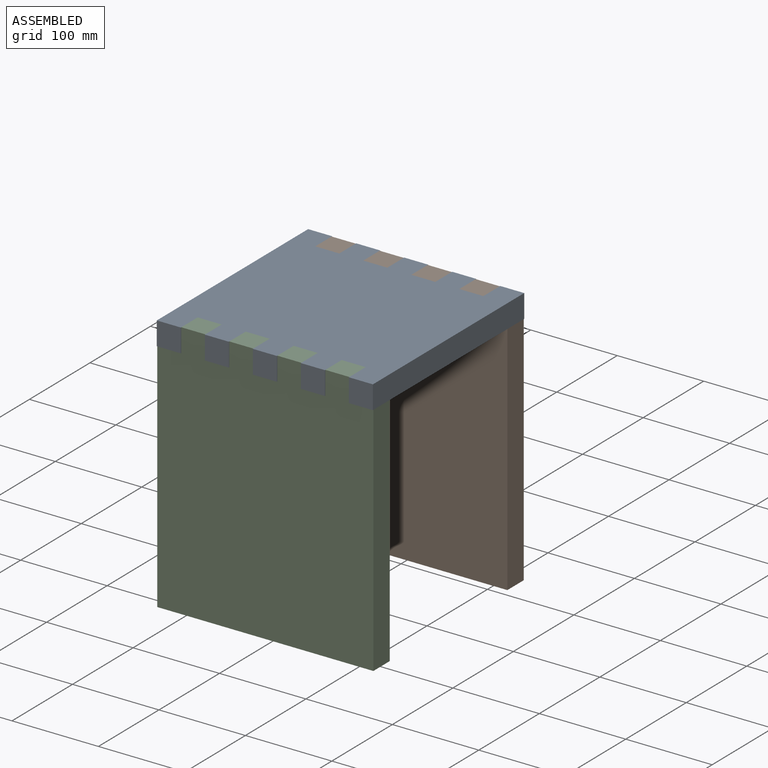
[diagram: assembled view]
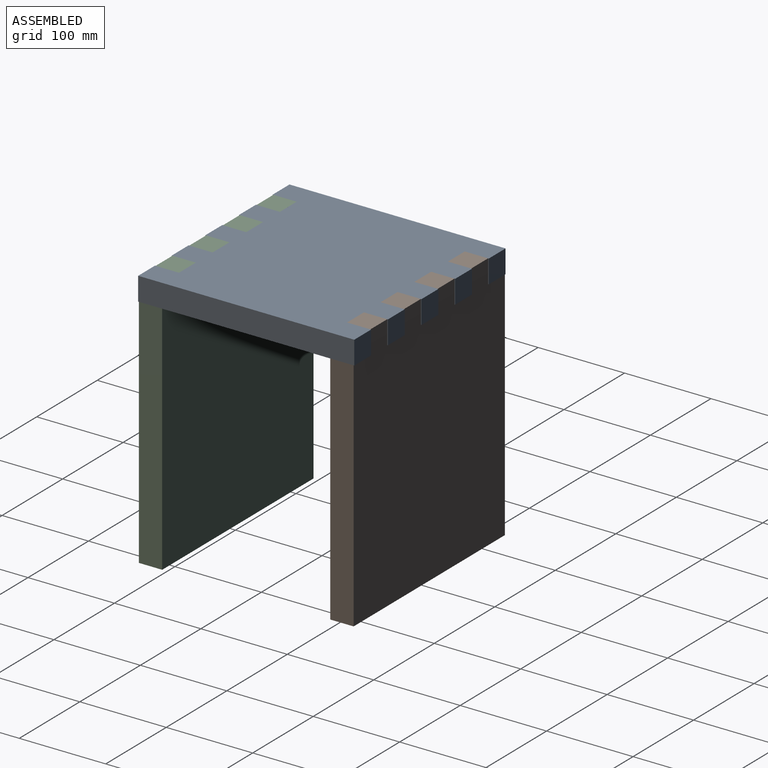
[diagram: assembled view, second angle]
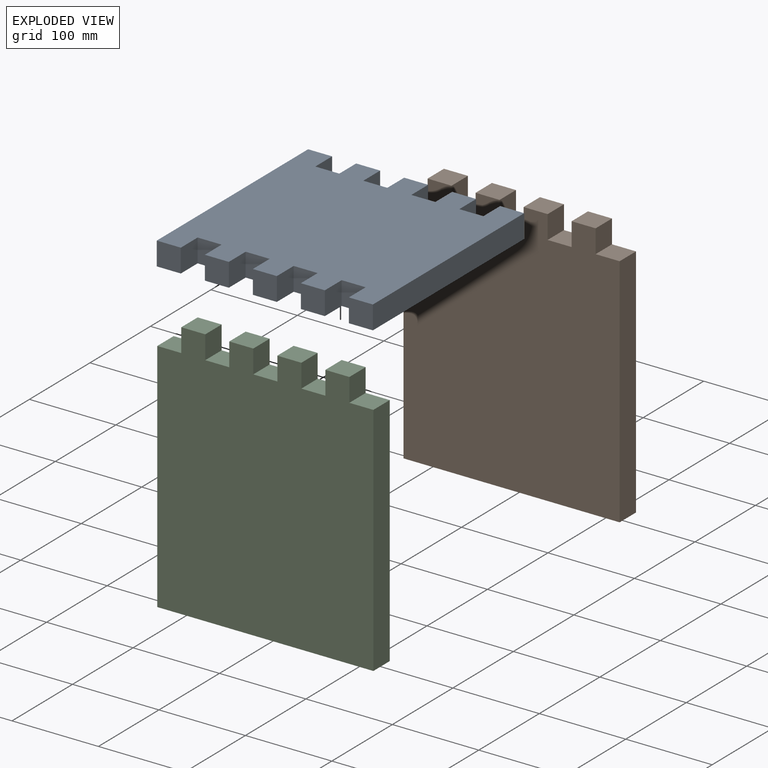
[diagram: exploded view]
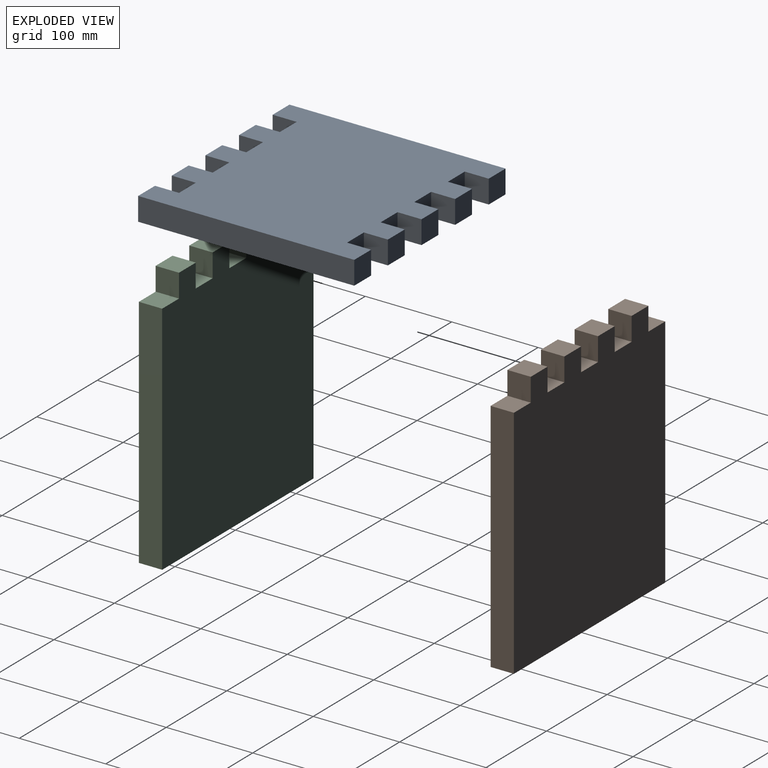
[diagram: exploded view, second angle]
ASSEMBLY  parts=3 mates=2
PART A: 38 faces, bbox 250x250x27 mm
  f0: plane 27.78x27mm, normal (-1,0,0), area 750mm2, adj f1,f35,f36,f37
  f1: plane 27.78x27mm, normal (0,-1,0), area 750mm2, adj f0,f2,f36,f37
  f2: plane 27.78x27mm, normal (1,0,0), area 750mm2, adj f1,f3,f36,f37
  f3: plane 27.78x27mm, normal (0,-1,0), area 750mm2, adj f2,f4,f36,f37
  f4: plane 27.78x27mm, normal (-1,0,0), area 750mm2, adj f3,f5,f36,f37
  f5: plane 27.78x27mm, normal (0,-1,0), area 750mm2, adj f4,f6,f36,f37
  f6: plane 27.78x27mm, normal (1,0,0), area 750mm2, adj f5,f7,f36,f37
  f7: plane 27.78x27mm, normal (0,-1,0), area 750mm2, adj f6,f8,f36,f37
  f8: plane 27.78x27mm, normal (-1,0,0), area 750mm2, adj f7,f9,f36,f37
  f9: plane 27.78x27mm, normal (0,-1,0), area 750mm2, adj f8,f10,f36,f37
  f10: plane 27.78x27mm, normal (1,0,0), area 750mm2, adj f9,f11,f36,f37
  f11: plane 27.78x27mm, normal (0,-1,0), area 750mm2, adj f10,f12,f36,f37
  f12: plane 27.78x27mm, normal (-1,0,0), area 750mm2, adj f11,f13,f36,f37
  f13: plane 27.78x27mm, normal (0,-1,0), area 750mm2, adj f12,f14,f36,f37
  f14: plane 250x27mm, normal (1,0,0), area 6750mm2, adj f13,f15,f36,f37
  f15: plane 27.78x27mm, normal (0,1,0), area 750mm2, adj f14,f16,f36,f37
  f16: plane 27.78x27mm, normal (-1,0,0), area 750mm2, adj f15,f17,f36,f37
  f17: plane 27.78x27mm, normal (0,1,0), area 750mm2, adj f16,f18,f36,f37
  f18: plane 27.78x27mm, normal (1,0,0), area 750mm2, adj f17,f19,f36,f37
  f19: plane 27.78x27mm, normal (0,1,0), area 750mm2, adj f18,f20,f36,f37
  f20: plane 27.78x27mm, normal (-1,0,0), area 750mm2, adj f19,f21,f36,f37
  f21: plane 27.78x27mm, normal (0,1,0), area 750mm2, adj f20,f22,f36,f37
  f22: plane 27.78x27mm, normal (1,0,0), area 750mm2, adj f21,f23,f36,f37
  f23: plane 27.78x27mm, normal (0,1,0), area 750mm2, adj f22,f24,f36,f37
  f24: plane 27.78x27mm, normal (-1,0,0), area 750mm2, adj f23,f25,f36,f37
  f25: plane 27.78x27mm, normal (0,1,0), area 750mm2, adj f24,f26,f36,f37
  f26: plane 27.78x27mm, normal (1,0,0), area 750mm2, adj f25,f27,f36,f37
  f27: plane 27.78x27mm, normal (0,1,0), area 750mm2, adj f26,f28,f36,f37
  f28: plane 27.78x27mm, normal (-1,0,0), area 750mm2, adj f27,f29,f36,f37
  f29: plane 27.78x27mm, normal (0,1,0), area 750mm2, adj f28,f30,f36,f37
  f30: plane 27.78x27mm, normal (1,0,0), area 750mm2, adj f29,f31,f36,f37
  f31: plane 27.78x27mm, normal (0,1,0), area 750mm2, adj f30,f32,f36,f37
  f32: plane 250x27mm, normal (-1,0,0), area 6750mm2, adj f31,f33,f36,f37
  f33: plane 27.78x27mm, normal (0,-1,0), area 750mm2, adj f32,f34,f36,f37
  f34: plane 27.78x27mm, normal (1,0,0), area 750mm2, adj f33,f35,f36,f37
  f35: plane 27.78x27mm, normal (0,-1,0), area 750mm2, adj f0,f34,f36,f37
  f36: plane 250x250mm, normal (0,0,1), area 56327.2mm2, adj f0,f1,f2,f3,f4,f5,f6,f7
  f37: plane 250x250mm, normal (0,0,-1), area 56327.2mm2, adj f0,f1,f2,f3,f4,f5,f6,f7
PART B: 22 faces, bbox 250x27x300 mm
  f0: plane 27.78x27mm, normal (0,0,1), area 750mm2, adj f1,f19,f20,f21
  f1: plane 27x27mm, normal (-1,0,0), area 729mm2, adj f0,f2,f20,f21
  f2: plane 27.78x27mm, normal (0,0,1), area 750mm2, adj f1,f3,f20,f21
  f3: plane 273x27mm, normal (-1,0,0), area 7371mm2, adj f2,f4,f20,f21
  f4: plane 250x27mm, normal (0,0,-1), area 6750mm2, adj f3,f5,f20,f21
  f5: plane 273x27mm, normal (1,0,0), area 7371mm2, adj f4,f6,f20,f21
  f6: plane 27.78x27mm, normal (0,0,1), area 750mm2, adj f5,f7,f20,f21
  f7: plane 27x27mm, normal (1,0,0), area 729mm2, adj f6,f8,f20,f21
  f8: plane 27.78x27mm, normal (0,0,1), area 750mm2, adj f7,f9,f20,f21
  f9: plane 27x27mm, normal (-1,0,0), area 729mm2, adj f8,f10,f20,f21
  f10: plane 27.78x27mm, normal (0,0,1), area 750mm2, adj f9,f11,f20,f21
  f11: plane 27x27mm, normal (1,0,0), area 729mm2, adj f10,f12,f20,f21
  f12: plane 27.78x27mm, normal (0,0,1), area 750mm2, adj f11,f13,f20,f21
  f13: plane 27x27mm, normal (-1,0,0), area 729mm2, adj f12,f14,f20,f21
  f14: plane 27.78x27mm, normal (0,0,1), area 750mm2, adj f13,f15,f20,f21
  f15: plane 27x27mm, normal (1,0,0), area 729mm2, adj f14,f16,f20,f21
  f16: plane 27.78x27mm, normal (0,0,1), area 750mm2, adj f15,f17,f20,f21
  f17: plane 27x27mm, normal (-1,0,0), area 729mm2, adj f16,f18,f20,f21
  f18: plane 27.78x27mm, normal (0,0,1), area 750mm2, adj f17,f19,f20,f21
  f19: plane 27x27mm, normal (1,0,0), area 729mm2, adj f0,f18,f20,f21
  f20: plane 300x250mm, normal (0,-1,0), area 71250mm2, adj f0,f1,f2,f3,f4,f5,f6,f7
  f21: plane 300x250mm, normal (0,1,0), area 71250mm2, adj f0,f1,f2,f3,f4,f5,f6,f7
PART C: same geometry as B
PLACE A at identity fixed
PLACE B t=(0,249.22,0)mm
PLACE C t=(0,27.78,0)mm
MATE fastened A.f35 <-> C.f21  axis (0,-1,0) through (-83.33,-97.22,27)mm
MATE fastened B.f20 <-> A.f29  axis (0,-1,0) through (-83.33,97.22,27)mm
